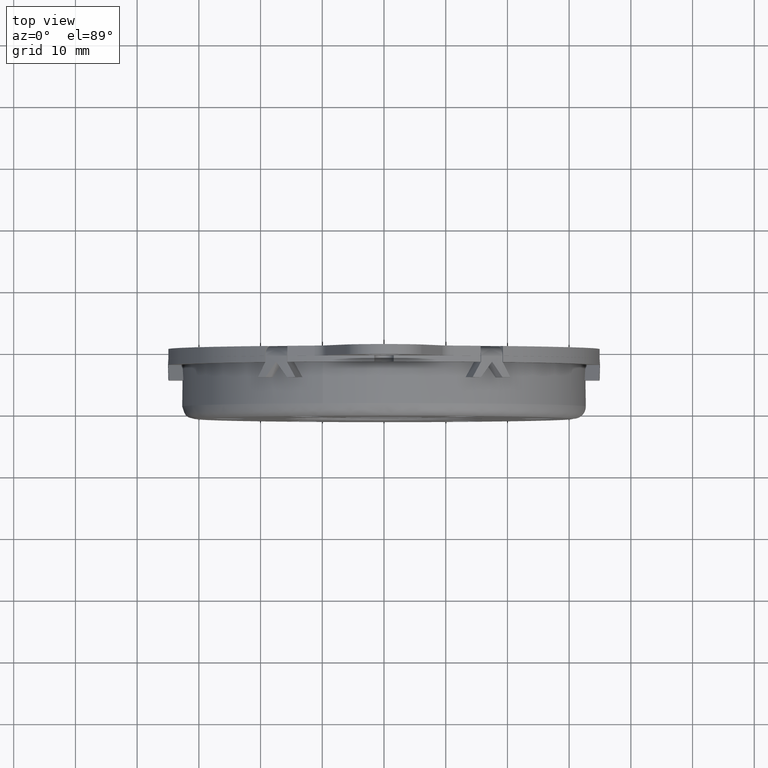
[diagram: clean part render]
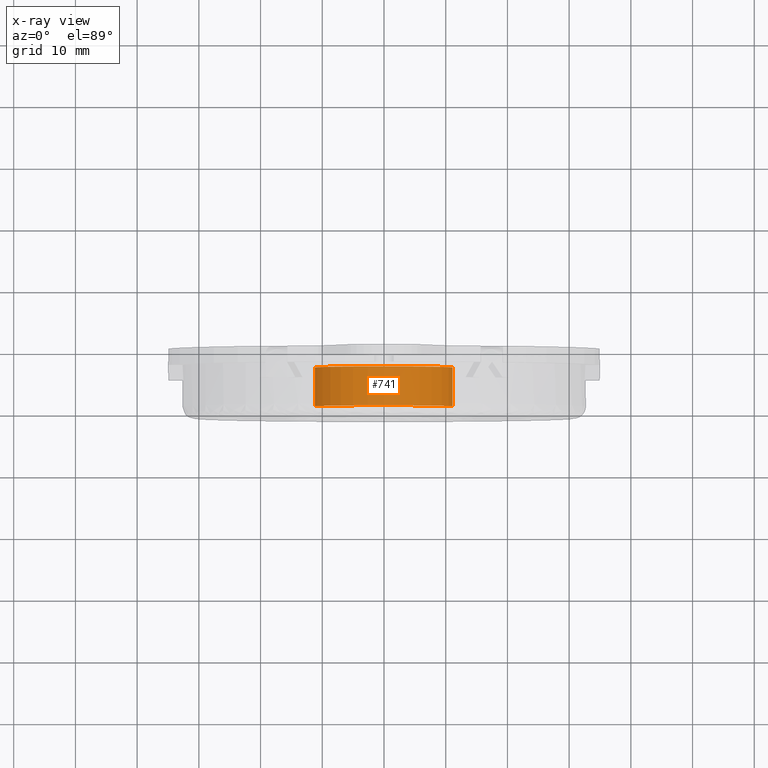
[diagram: x-ray — body ghosted, one internal face saturated and labeled with its STEP entity id]
A machine part, top view, then the same camera in x-ray: the body is ghosted and one INTERNAL B-rep face — a face not visible from any outside direction — is saturated and labeled: STEP entity #741.
In plain terms, the highlighted face is a freeform B-spline surface patch.
Its self-contained STEP definition (entity closure, byte-faithful):
#639=CARTESIAN_POINT('',(11.121706695273065,-2.842499999999999,-1.321983428155696));
#640=CARTESIAN_POINT('',(11.159541293024382,-2.842500000000000,-1.003684960745351));
#641=CARTESIAN_POINT('',(11.179109742324910,-2.842499999999999,-0.683743642790399));
#642=CARTESIAN_POINT('',(11.862853385115304,-2.842499999999999,10.495366099534507));
#643=CARTESIAN_POINT('',(0.683743642790398,-2.842499999999999,11.179109742324901));
#644=CARTESIAN_POINT('',(-10.495366099534507,-2.842499999999999,11.862853385115301));
#645=CARTESIAN_POINT('',(-11.179109742324910,-2.842499999999999,0.683743642790397));
#646=CARTESIAN_POINT('',(11.121706695273065,-9.461437500000002,-1.321983428155696));
#647=CARTESIAN_POINT('',(11.159541293024382,-9.461437500000002,-1.003684960745351));
#648=CARTESIAN_POINT('',(11.179109742324910,-9.461437500000001,-0.683743642790399));
#649=CARTESIAN_POINT('',(11.862853385115304,-9.461437500000001,10.495366099534507));
#650=CARTESIAN_POINT('',(0.683743642790398,-9.461437500000001,11.179109742324901));
#651=CARTESIAN_POINT('',(-10.495366099534507,-9.461437500000001,11.862853385115301));
#652=CARTESIAN_POINT('',(-11.179109742324910,-9.461437500000001,0.683743642790397));
#660=(BOUNDED_SURFACE()B_SPLINE_SURFACE(2,1,((#639,#646),(#640,#647),(#641,#648),(#642,#649),(#643,#650),(#644,#651),(#645,#652)),.UNSPECIFIED.,.F.,.F.,.U.)B_SPLINE_SURFACE_WITH_KNOTS((3,2,2,3),(2,2),(0.0,0.742270703772587,19.299038298087240,37.855805892401889),(0.0,6.618937500000003),.UNSPECIFIED.)GEOMETRIC_REPRESENTATION_ITEM()RATIONAL_B_SPLINE_SURFACE(((0.977505800795127,0.977505800795127),(0.988284271247462,0.988284271247462),(1.0,1.0),(0.707106781186548,0.707106781186548),(1.0,1.0),(0.707106781186548,0.707106781186548),(1.0,1.0)))REPRESENTATION_ITEM('')SURFACE());
#661=CARTESIAN_POINT('',(11.121706695261770,-3.0,-1.321983428250701));
#662=VERTEX_POINT('',#661);
#663=CARTESIAN_POINT('',(0.0,-3.0,11.199999999999999));
#664=VERTEX_POINT('',#663);
#665=CARTESIAN_POINT('',(11.121706695261773,-3.000000000000000,-1.321983428250701));
#666=CARTESIAN_POINT('',(11.199999999999996,-3.0,-0.663310140197403));
#667=CARTESIAN_POINT('',(11.199999999999999,-3.0,-9.985231E-016));
#668=CARTESIAN_POINT('',(11.199999999999999,-3.000000000000000,11.199999999999999));
#669=CARTESIAN_POINT('',(0.0,-3.0,11.199999999999999));
#677=(BOUNDED_CURVE()B_SPLINE_CURVE(2,(#665,#666,#667,#668,#669),.UNSPECIFIED.,.F.,.U.)B_SPLINE_CURVE_WITH_KNOTS((3,2,3),(0.229562473512757,0.250000000000000,0.500000000000000),.UNSPECIFIED.)CURVE()GEOMETRIC_REPRESENTATION_ITEM()RATIONAL_B_SPLINE_CURVE((0.956026754182226,0.976055948330265,1.0,0.707106781186547,1.0))REPRESENTATION_ITEM(''));
#678=EDGE_CURVE('',#662,#664,#677,.T.);
#679=ORIENTED_EDGE('',*,*,#678,.F.);
#680=CARTESIAN_POINT('',(11.121706695261770,-9.299999999999999,-1.321983428250701));
#681=VERTEX_POINT('',#680);
#682=CARTESIAN_POINT('',(11.121706695261770,-3.0,-1.321983428250701));
#683=CARTESIAN_POINT('',(11.121706695261770,-9.299999999999999,-1.321983428250701));
#684=QUASI_UNIFORM_CURVE('',1,(#682,#683),.UNSPECIFIED.,.F.,.U.);
#685=EDGE_CURVE('',#662,#681,#684,.T.);
#686=ORIENTED_EDGE('',*,*,#685,.T.);
#687=CARTESIAN_POINT('',(0.0,-9.299999999999999,11.199999999999999));
#688=VERTEX_POINT('',#687);
#689=CARTESIAN_POINT('',(11.121706695261773,-9.299999999999999,-1.321983428250701));
#690=CARTESIAN_POINT('',(11.199999999999996,-9.299999999999997,-0.663310140197403));
#691=CARTESIAN_POINT('',(11.199999999999999,-9.299999999999999,-9.985231E-016));
#692=CARTESIAN_POINT('',(11.199999999999999,-9.300000000000001,11.199999999999999));
#693=CARTESIAN_POINT('',(0.0,-9.299999999999999,11.199999999999999));
#701=(BOUNDED_CURVE()B_SPLINE_CURVE(2,(#689,#690,#691,#692,#693),.UNSPECIFIED.,.F.,.U.)B_SPLINE_CURVE_WITH_KNOTS((3,2,3),(0.229562473512757,0.250000000000000,0.500000000000000),.UNSPECIFIED.)CURVE()GEOMETRIC_REPRESENTATION_ITEM()RATIONAL_B_SPLINE_CURVE((0.956026754182226,0.976055948330265,1.0,0.707106781186547,1.0))REPRESENTATION_ITEM(''));
#702=EDGE_CURVE('',#681,#688,#701,.T.);
#703=ORIENTED_EDGE('',*,*,#702,.T.);
#704=CARTESIAN_POINT('',(-11.179109742317840,-9.300000000000001,0.683743642906014));
#705=VERTEX_POINT('',#704);
#706=CARTESIAN_POINT('',(0.0,-9.299999999999999,11.199999999999999));
#707=CARTESIAN_POINT('',(-10.535907949125420,-9.299999999999999,11.199999999999999));
#708=CARTESIAN_POINT('',(-11.179109742317836,-9.300000000000001,0.683743642906014));
#716=(BOUNDED_CURVE()B_SPLINE_CURVE(2,(#706,#707,#708),.UNSPECIFIED.,.F.,.U.)B_SPLINE_CURVE_WITH_KNOTS((3,3),(0.500000000000000,0.739332962238399),.UNSPECIFIED.)CURVE()GEOMETRIC_REPRESENTATION_ITEM()RATIONAL_B_SPLINE_CURVE((1.0,0.719603993287347,0.976072041665552))REPRESENTATION_ITEM(''));
#717=EDGE_CURVE('',#688,#705,#716,.T.);
#718=ORIENTED_EDGE('',*,*,#717,.T.);
#719=CARTESIAN_POINT('',(-11.179109742317840,-3.0,0.683743642906014));
#720=VERTEX_POINT('',#719);
#721=CARTESIAN_POINT('',(-11.179109742317840,-3.0,0.683743642906014));
#722=CARTESIAN_POINT('',(-11.179109742317840,-9.300000000000001,0.683743642906014));
#723=QUASI_UNIFORM_CURVE('',1,(#721,#722),.UNSPECIFIED.,.F.,.U.);
#724=EDGE_CURVE('',#720,#705,#723,.T.);
#725=ORIENTED_EDGE('',*,*,#724,.F.);
#726=CARTESIAN_POINT('',(0.0,-3.0,11.199999999999999));
#727=CARTESIAN_POINT('',(-10.535907949125420,-3.000000000000001,11.199999999999999));
#728=CARTESIAN_POINT('',(-11.179109742317836,-3.000000000000001,0.683743642906014));
#736=(BOUNDED_CURVE()B_SPLINE_CURVE(2,(#726,#727,#728),.UNSPECIFIED.,.F.,.U.)B_SPLINE_CURVE_WITH_KNOTS((3,3),(0.500000000000000,0.739332962238399),.UNSPECIFIED.)CURVE()GEOMETRIC_REPRESENTATION_ITEM()RATIONAL_B_SPLINE_CURVE((1.0,0.719603993287347,0.976072041665552))REPRESENTATION_ITEM(''));
#737=EDGE_CURVE('',#664,#720,#736,.T.);
#738=ORIENTED_EDGE('',*,*,#737,.F.);
#739=EDGE_LOOP('',(#679,#686,#703,#718,#725,#738));
#740=FACE_OUTER_BOUND('',#739,.T.);
#741=ADVANCED_FACE('',(#740),#660,.F.);